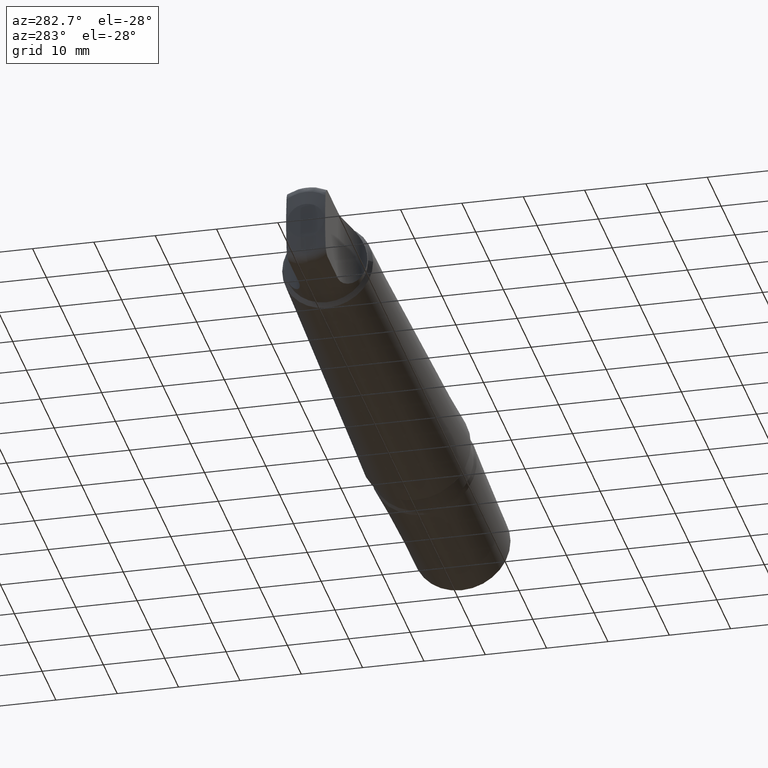
[diagram: clean part render]
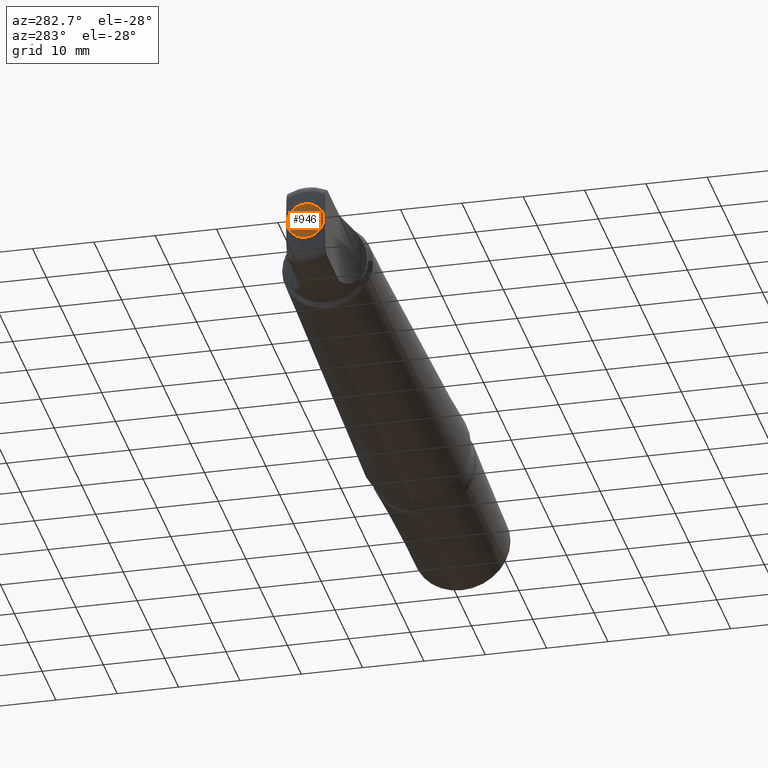
[diagram: same view with one face highlighted and labeled with its STEP entity id]
A machine part, auxiliary view. The second image highlights one B-rep face of the part: STEP entity #946.
In plain terms, the highlighted planar face has unit normal (1, -0, 0).
Its self-contained STEP definition (entity closure, byte-faithful):
#6 = AXIS2_PLACEMENT_3D ( 'NONE', #400, #459, #366 ) ;
#60 = PLANE ( 'NONE',  #6 ) ;
#124 = CARTESIAN_POINT ( 'NONE',  ( -3.408757662376086800E-010, 0.0000000000000000000, 0.0000000000000000000 ) ) ;
#151 = EDGE_CURVE ( 'NONE', #240, #949, #678, .T. ) ;
#185 = AXIS2_PLACEMENT_3D ( 'NONE', #934, #377, #568 ) ;
#193 = ORIENTED_EDGE ( 'NONE', *, *, #998, .T. ) ;
#240 = VERTEX_POINT ( 'NONE', #1053 ) ;
#336 = AXIS2_PLACEMENT_3D ( 'NONE', #124, #581, #1047 ) ;
#366 = DIRECTION ( 'NONE',  ( 0.0000000000000000000, 0.0000000000000000000, -1.000000000000000000 ) ) ;
#377 = DIRECTION ( 'NONE',  ( -1.000000000000000000, -0.0000000000000000000, -0.0000000000000000000 ) ) ;
#400 = CARTESIAN_POINT ( 'NONE',  ( 0.0000000000000000000, -3.035999999999999600, 3.035999999999999600 ) ) ;
#459 = DIRECTION ( 'NONE',  ( 1.000000000000000000, -0.0000000000000000000, 0.0000000000000000000 ) ) ;
#464 = CIRCLE ( 'NONE', #185, 3.000000000222156500 ) ;
#555 = CARTESIAN_POINT ( 'NONE',  ( -3.408757662376086800E-010, 0.0000000000000000000, -3.000000000222156500 ) ) ;
#568 = DIRECTION ( 'NONE',  ( 0.0000000000000000000, 0.0000000000000000000, -1.000000000000000000 ) ) ;
#581 = DIRECTION ( 'NONE',  ( -1.000000000000000000, -0.0000000000000000000, -0.0000000000000000000 ) ) ;
#647 = EDGE_LOOP ( 'NONE', ( #193, #977 ) ) ;
#678 = CIRCLE ( 'NONE', #336, 3.000000000222156500 ) ;
#934 = CARTESIAN_POINT ( 'NONE',  ( -3.408757662376086800E-010, 0.0000000000000000000, 0.0000000000000000000 ) ) ;
#946 = ADVANCED_FACE ( 'NONE', ( #1175 ), #60, .F. ) ;
#949 = VERTEX_POINT ( 'NONE', #555 ) ;
#977 = ORIENTED_EDGE ( 'NONE', *, *, #151, .T. ) ;
#998 = EDGE_CURVE ( 'NONE', #949, #240, #464, .T. ) ;
#1047 = DIRECTION ( 'NONE',  ( 0.0000000000000000000, 0.0000000000000000000, -1.000000000000000000 ) ) ;
#1053 = CARTESIAN_POINT ( 'NONE',  ( -3.408757662376086800E-010, 3.673940397714122700E-016, 3.000000000222156500 ) ) ;
#1175 = FACE_OUTER_BOUND ( 'NONE', #647, .T. ) ;